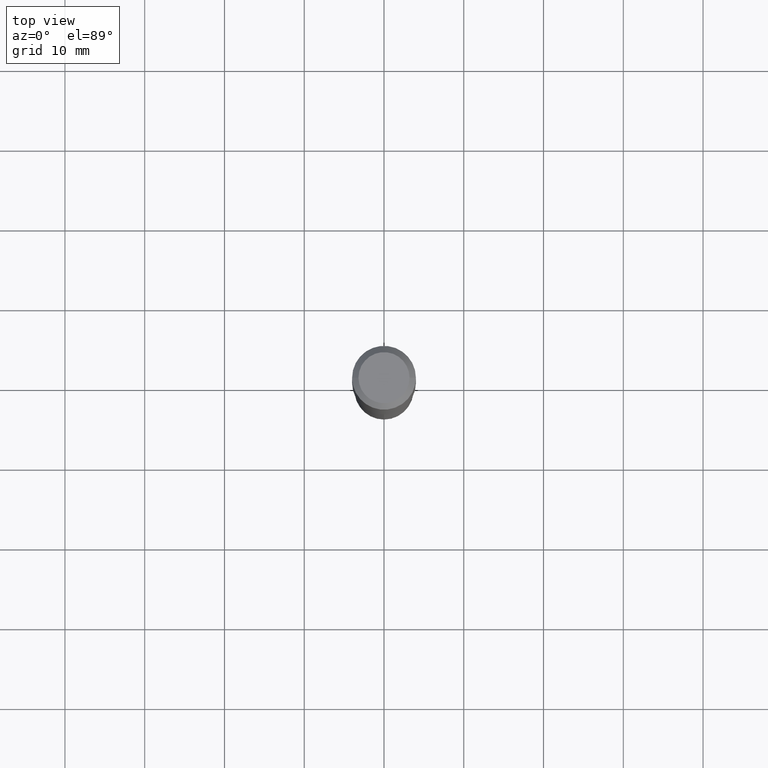
[diagram: clean part render]
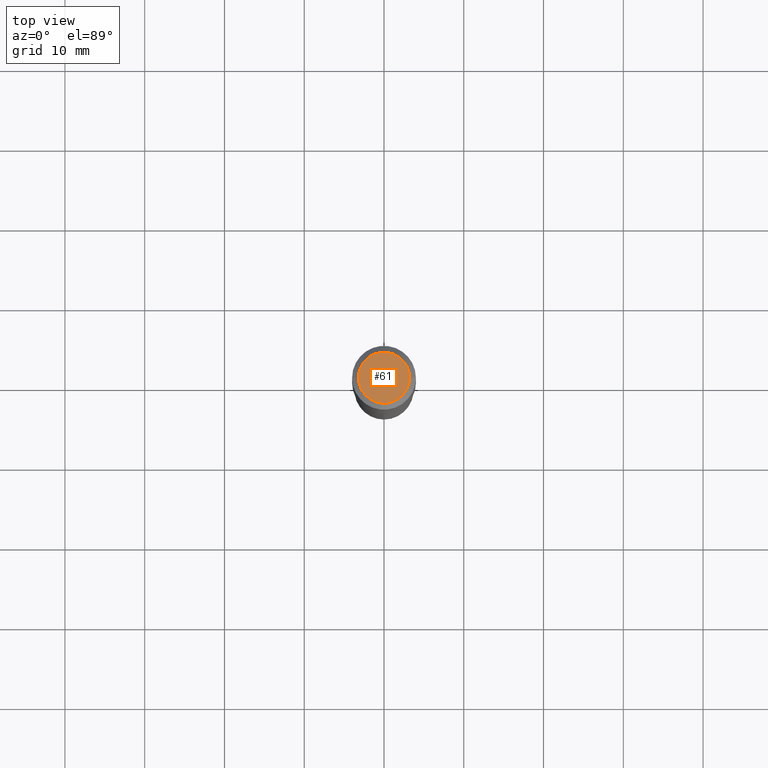
[diagram: same view with one face highlighted and labeled with its STEP entity id]
A machine part, top view. The second image highlights one B-rep face of the part: STEP entity #61.
In plain terms, the highlighted planar face has unit normal (0, -0, -1).
Its self-contained STEP definition (entity closure, byte-faithful):
#38 = DIRECTION ( 'NONE',  ( -2.445468806185136597E-29, 3.491481338843145583E-15, 1.000000000000000000 ) ) ;
#48 = CIRCLE ( 'NONE', #347, 0.1260000000000000009 ) ;
#61 = ADVANCED_FACE ( 'NONE', ( #259 ), #401, .F. ) ;
#66 = CARTESIAN_POINT ( 'NONE',  ( -9.439721640706201686E-47, 1.347742071746726764E-32, 3.860086710912459732E-18 ) ) ;
#98 = VERTEX_POINT ( 'NONE', #149 ) ;
#134 = ORIENTED_EDGE ( 'NONE', *, *, #373, .T. ) ;
#149 = CARTESIAN_POINT ( 'NONE',  ( 0.1260000000000000009, -1.027466422270894443E-15, 3.860086710919128072E-18 ) ) ;
#158 = VERTEX_POINT ( 'NONE', #253 ) ;
#181 = ORIENTED_EDGE ( 'NONE', *, *, #281, .T. ) ;
#223 = DIRECTION ( 'NONE',  ( -1.000000000000000000, 6.982962677686265922E-15, -4.876176775795935793E-29 ) ) ;
#240 = AXIS2_PLACEMENT_3D ( 'NONE', #394, #328, #223 ) ;
#253 = CARTESIAN_POINT ( 'NONE',  ( -0.1260000000000000009, 9.348441284752484904E-16, 3.860086710906114178E-18 ) ) ;
#259 = FACE_OUTER_BOUND ( 'NONE', #445, .T. ) ;
#281 = EDGE_CURVE ( 'NONE', #98, #158, #484, .T. ) ;
#300 = DIRECTION ( 'NONE',  ( 1.000000000000000000, -6.982962677686265922E-15, 4.876281427513067258E-29 ) ) ;
#317 = DIRECTION ( 'NONE',  ( 1.000000000000000000, -6.982962677686265922E-15, 4.876281427513067258E-29 ) ) ;
#328 = DIRECTION ( 'NONE',  ( 2.438088387897960049E-29, -3.491481338843145188E-15, -1.000000000000000000 ) ) ;
#347 = AXIS2_PLACEMENT_3D ( 'NONE', #66, #356, #317 ) ;
#356 = DIRECTION ( 'NONE',  ( -2.445468806185136597E-29, 3.491481338843145583E-15, 1.000000000000000000 ) ) ;
#366 = CARTESIAN_POINT ( 'NONE',  ( -9.439721640706201686E-47, 1.347742071746726764E-32, 3.860086710912459732E-18 ) ) ;
#373 = EDGE_CURVE ( 'NONE', #158, #98, #48, .T. ) ;
#394 = CARTESIAN_POINT ( 'NONE',  ( -4.719860820353100843E-47, 6.738710358733633822E-33, 1.930043355456229866E-18 ) ) ;
#401 = PLANE ( 'NONE',  #240 ) ;
#445 = EDGE_LOOP ( 'NONE', ( #134, #181 ) ) ;
#484 = CIRCLE ( 'NONE', #489, 0.1260000000000000009 ) ;
#489 = AXIS2_PLACEMENT_3D ( 'NONE', #366, #38, #300 ) ;